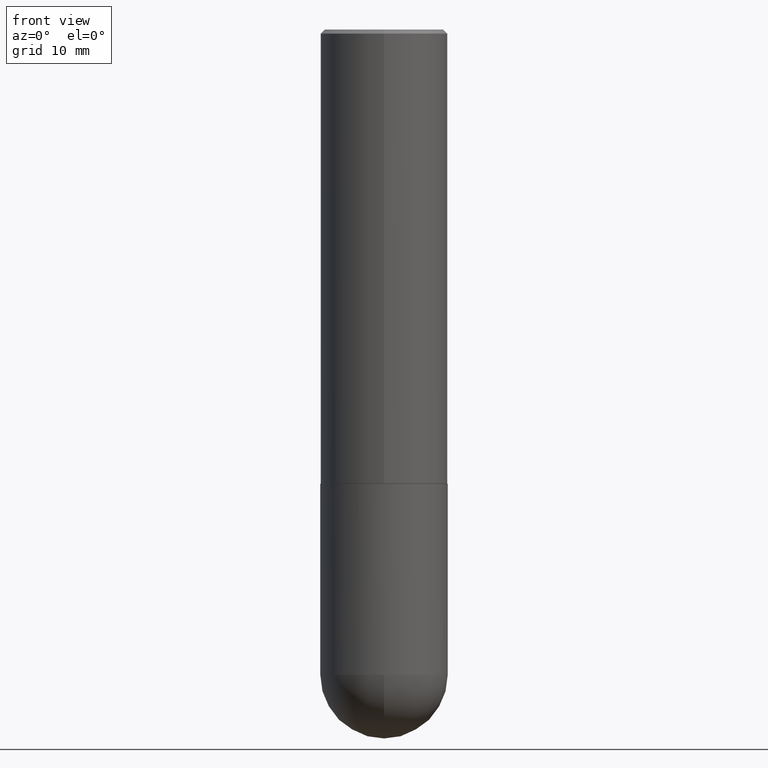
[diagram: clean part render]
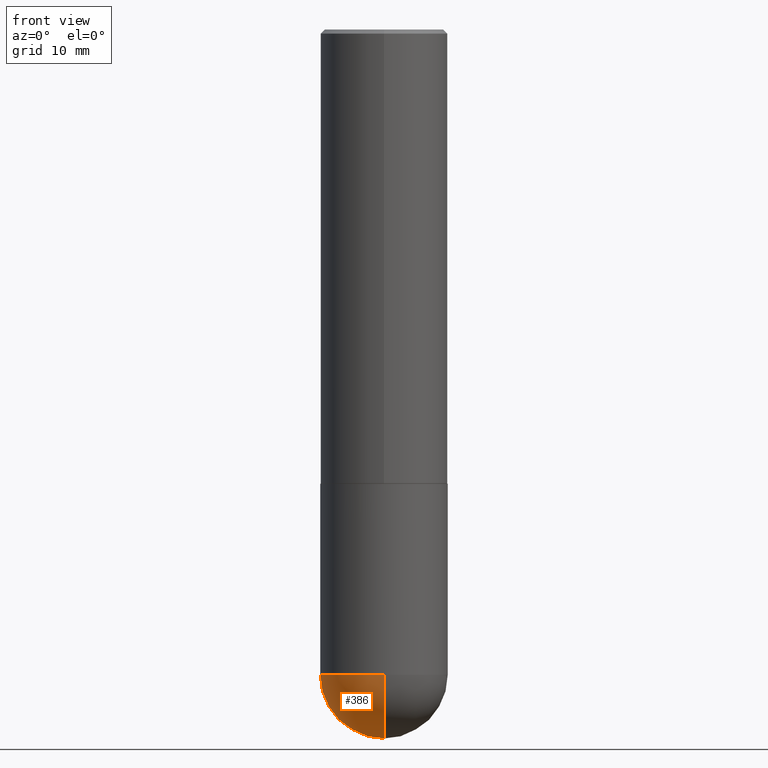
[diagram: same view with one face highlighted and labeled with its STEP entity id]
A machine part, front view. The second image highlights one B-rep face of the part: STEP entity #386.
In plain terms, the highlighted spherical surface has radius 7.9997 mm.
Its self-contained STEP definition (entity closure, byte-faithful):
#21 = CARTESIAN_POINT ( 'NONE',  ( 7.798477749484091354E-29, -1.113415941550384898E-14, -3.188949999999999729 ) ) ;
#32 = CARTESIAN_POINT ( 'NONE',  ( 7.798477749484091354E-29, -1.113415941550384898E-14, -3.188949999999999729 ) ) ;
#36 = CARTESIAN_POINT ( 'NONE',  ( 7.467357971570205107E-29, -1.160834178364390085E-14, -3.188949999999999729 ) ) ;
#58 = VERTEX_POINT ( 'NONE', #397 ) ;
#66 = AXIS2_PLACEMENT_3D ( 'NONE', #21, #332, #270 ) ;
#67 = EDGE_CURVE ( 'NONE', #206, #394, #158, .T. ) ;
#87 = DIRECTION ( 'NONE',  ( 1.000000000000000000, -6.982962677686265922E-15, 4.883557194083112340E-29 ) ) ;
#105 = CARTESIAN_POINT ( 'NONE',  ( 7.467357971570205107E-29, -1.160834178364390085E-14, -3.188949999999999729 ) ) ;
#118 = DIRECTION ( 'NONE',  ( 6.982962677686264344E-15, 1.000000000000000000, 0.000000000000000000 ) ) ;
#127 = AXIS2_PLACEMENT_3D ( 'NONE', #105, #234, #395 ) ;
#128 = EDGE_LOOP ( 'NONE', ( #263, #192, #272, #151 ) ) ;
#145 = CIRCLE ( 'NONE', #372, 0.3149500000000000077 ) ;
#151 = ORIENTED_EDGE ( 'NONE', *, *, #310, .F. ) ;
#158 = CIRCLE ( 'NONE', #371, 0.3149500000000001743 ) ;
#164 = CARTESIAN_POINT ( 'NONE',  ( -0.3149500000000000077, -7.246841997724442041E-15, -3.188949999999999729 ) ) ;
#185 = CIRCLE ( 'NONE', #303, 0.3149500000000001743 ) ;
#192 = ORIENTED_EDGE ( 'NONE', *, *, #275, .T. ) ;
#206 = VERTEX_POINT ( 'NONE', #356 ) ;
#234 = DIRECTION ( 'NONE',  ( -1.000000000000000000, 6.982962677686265133E-15, -4.883557194083112901E-29 ) ) ;
#244 = CIRCLE ( 'NONE', #66, 0.3149500000000000077 ) ;
#257 = DIRECTION ( 'NONE',  ( -7.105427357600999492E-15, -1.000000000000000000, 0.000000000000000000 ) ) ;
#263 = ORIENTED_EDGE ( 'NONE', *, *, #67, .F. ) ;
#266 = SPHERICAL_SURFACE ( 'NONE', #127, 0.3149500000000001743 ) ;
#270 = DIRECTION ( 'NONE',  ( 1.000000000000000000, -6.982962677686263555E-15, 0.000000000000000000 ) ) ;
#272 = ORIENTED_EDGE ( 'NONE', *, *, #326, .F. ) ;
#275 = EDGE_CURVE ( 'NONE', #206, #58, #185, .T. ) ;
#285 = DIRECTION ( 'NONE',  ( -1.000000000000000000, 7.105427357601001070E-15, -4.926315508542082329E-29 ) ) ;
#295 = FACE_OUTER_BOUND ( 'NONE', #128, .T. ) ;
#301 = CARTESIAN_POINT ( 'NONE',  ( 2.199284095337366390E-15, 0.3149499999999886835, -3.188950000000001062 ) ) ;
#303 = AXIS2_PLACEMENT_3D ( 'NONE', #36, #285, #257 ) ;
#310 = EDGE_CURVE ( 'NONE', #394, #331, #145, .T. ) ;
#323 = DIRECTION ( 'NONE',  ( -2.445468806185136597E-29, 3.491481338843145583E-15, 1.000000000000000000 ) ) ;
#326 = EDGE_CURVE ( 'NONE', #331, #58, #244, .T. ) ;
#331 = VERTEX_POINT ( 'NONE', #164 ) ;
#332 = DIRECTION ( 'NONE',  ( -2.445468806185136597E-29, 3.491481338843145583E-15, 1.000000000000000000 ) ) ;
#356 = CARTESIAN_POINT ( 'NONE',  ( 8.251025103217066053E-29, -1.268869870584297589E-14, -3.503899999999999793 ) ) ;
#361 = DIRECTION ( 'NONE',  ( 1.000000000000000000, -6.982962677686263555E-15, 0.000000000000000000 ) ) ;
#371 = AXIS2_PLACEMENT_3D ( 'NONE', #373, #87, #118 ) ;
#372 = AXIS2_PLACEMENT_3D ( 'NONE', #32, #323, #361 ) ;
#373 = CARTESIAN_POINT ( 'NONE',  ( 7.467357971570205107E-29, -1.160834178364390085E-14, -3.188949999999999729 ) ) ;
#386 = ADVANCED_FACE ( 'NONE', ( #295 ), #266, .T. ) ;
#394 = VERTEX_POINT ( 'NONE', #301 ) ;
#395 = DIRECTION ( 'NONE',  ( 6.982962677686265133E-15, 1.000000000000000000, -3.469564049740291586E-15 ) ) ;
#397 = CARTESIAN_POINT ( 'NONE',  ( -2.237854346276359071E-15, -0.3149500000000114985, -3.188949999999998841 ) ) ;